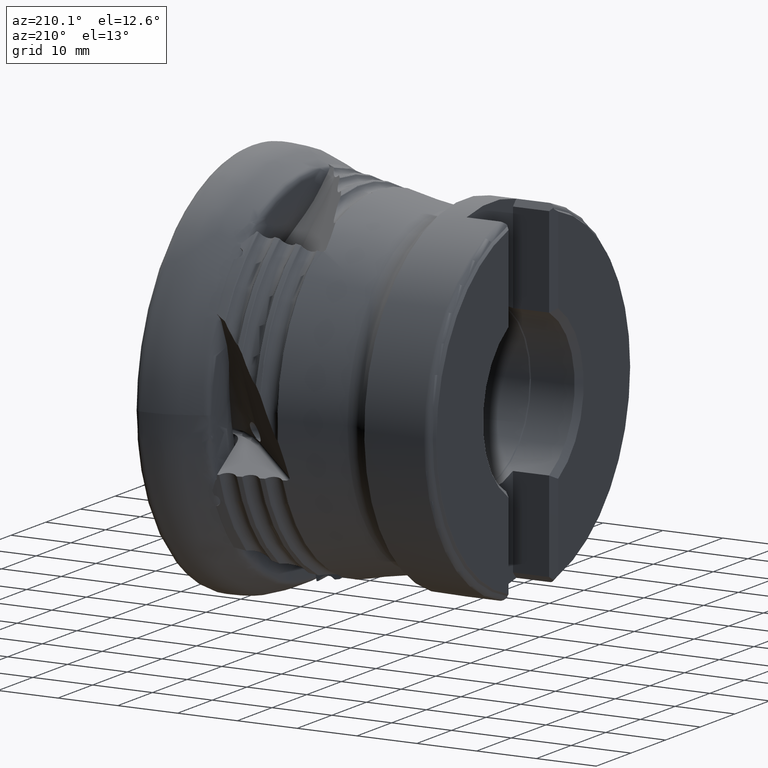
[diagram: clean part render]
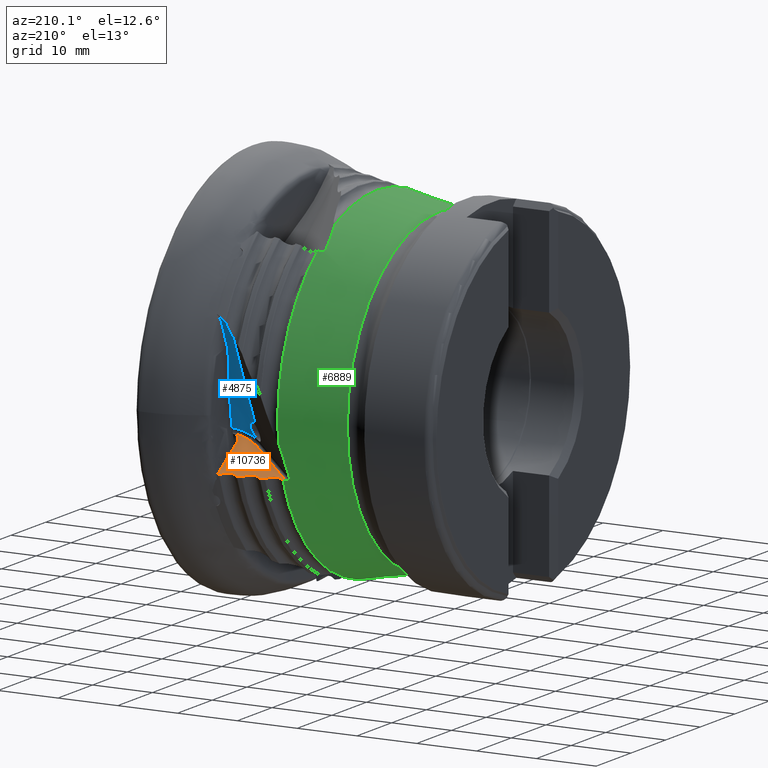
[diagram: same view with three faces highlighted in distinct colors, each labeled with its STEP entity id]
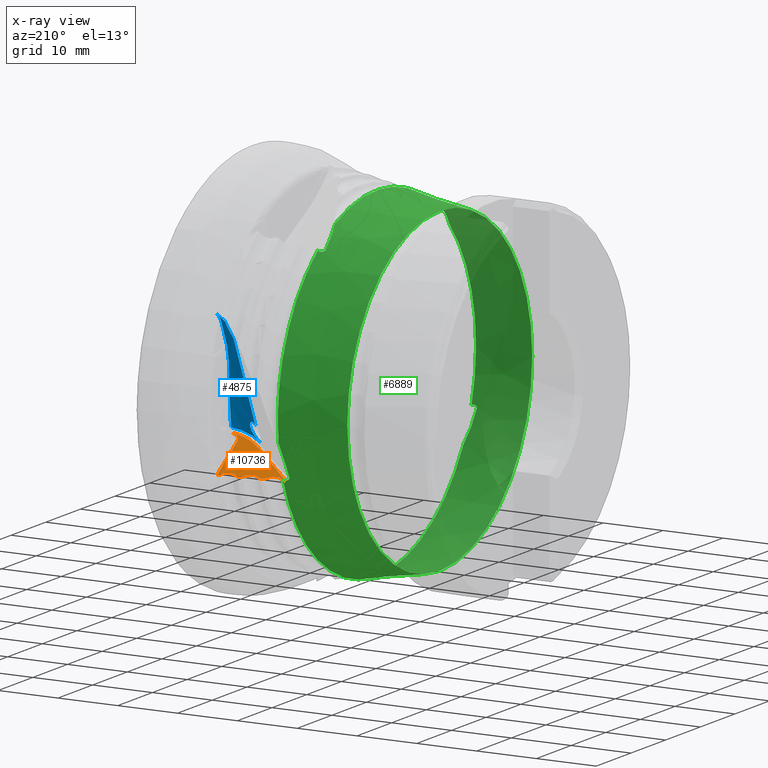
[diagram: x-ray of the same camera — body ghosted, the three highlighted faces saturated]
A machine part, auxiliary view with three faces highlighted in distinct colors.
The next image is the same camera in x-ray (body ghosted, the three faces saturated) — at least one of them is partly hidden behind the body in this view.
Their STEP definitions:

[orange] entity #10736 — the highlighted planar face has unit normal (0.0698, -0.3083, -0.9487).
#38 = CARTESIAN_POINT ( 'NONE',  ( -20.03457086515668500, 27.61462174756293200, -9.149127731909999300 ) ) ;
#48 = AXIS2_PLACEMENT_3D ( 'NONE', #537, #8233, #1646 ) ;
#51 = CARTESIAN_POINT ( 'NONE',  ( -9.417737406060714600, 18.50594777688688800, -5.408933212480900600 ) ) ;
#55 = DIRECTION ( 'NONE',  ( 0.9975640502598250900, 0.02155593585460106500, 0.06634234890810893100 ) ) ;
#87 = B_SPLINE_CURVE_WITH_KNOTS ( 'NONE', 3,
 ( #1475, #13545, #10270, #3667, #11374, #4781, #12480, #5881, #13594, #6985, #404, #8096, #1527, #9199, #2639, #10317 ),
 .UNSPECIFIED., .F., .F.,
 ( 4, 2, 2, 2, 2, 2, 2, 4 ),
 ( 2.823500845619924600E-007, 0.0003656658362658394400, 0.0007310493224471169700, 0.001096432808628394300, 0.001461816294809671800, 0.001827199780990949300, 0.002192583267172226700, 0.002923350239534792100 ),
 .UNSPECIFIED. ) ;
#122 = ORIENTED_EDGE ( 'NONE', *, *, #13605, .T. ) ;
#250 = CARTESIAN_POINT ( 'NONE',  ( -22.56416408146930100, 27.03174585126543800, -9.145729228896307500 ) ) ;
#404 = CARTESIAN_POINT ( 'NONE',  ( -14.09978585292977000, 28.06701217839652100, -8.859760844096701500 ) ) ;
#438 = CARTESIAN_POINT ( 'NONE',  ( -13.14946955177453300, 28.96366916173360900, -9.081229971419357800 ) ) ;
#462 = VERTEX_POINT ( 'NONE', #2806 ) ;
#537 = CARTESIAN_POINT ( 'NONE',  ( -9.064967516565205900, 20.38544803573558200, -5.993682318018667100 ) ) ;
#594 = CARTESIAN_POINT ( 'NONE',  ( -9.417737406060714600, 18.50594777688688800, -5.408933212480900600 ) ) ;
#607 = CARTESIAN_POINT ( 'NONE',  ( -10.20565752589745900, 18.79294504012771200, -5.560116419039556700 ) ) ;
#655 = ORIENTED_EDGE ( 'NONE', *, *, #5323, .T. ) ;
#666 = CARTESIAN_POINT ( 'NONE',  ( -17.32043550550296400, 27.49314491688856100, -8.910099625704015500 ) ) ;
#683 = EDGE_CURVE ( 'NONE', #2894, #3228, #11831, .T. ) ;
#758 = ORIENTED_EDGE ( 'NONE', *, *, #2145, .T. ) ;
#763 = ORIENTED_EDGE ( 'NONE', *, *, #5084, .F. ) ;
#797 = VERTEX_POINT ( 'NONE', #7254 ) ;
#827 = CARTESIAN_POINT ( 'NONE',  ( -16.64827197925246700, 28.24650636244229000, -9.105460504793903500 ) ) ;
#850 = CARTESIAN_POINT ( 'NONE',  ( -21.82997309991508300, 26.65105752593511600, -8.968054407379686000 ) ) ;
#876 = CARTESIAN_POINT ( 'NONE',  ( -15.72510312433645500, 28.42731684726003700, -9.096333032145105700 ) ) ;
#1046 = CARTESIAN_POINT ( 'NONE',  ( -12.21769571363306500, 25.77278962146173300, -7.975941315182755200 ) ) ;
#1075 = CARTESIAN_POINT ( 'NONE',  ( -14.59025029355367300, 37.65953987522164000, -12.01262362423591200 ) ) ;
#1182 = CARTESIAN_POINT ( 'NONE',  ( -19.96993367357831100, 27.62732102232577700, -9.148501500963789100 ) ) ;
#1248 = B_SPLINE_CURVE_WITH_KNOTS ( 'NONE', 3,
 ( #12019, #3218, #2114, #5418 ),
 .UNSPECIFIED., .F., .F.,
 ( 4, 4 ),
 ( 0.001930448597579820500, 0.002153799477540832000 ),
 .UNSPECIFIED. ) ;
#1341 = CARTESIAN_POINT ( 'NONE',  ( -19.16765294675882100, 27.75235806929228800, -9.130140487951530700 ) ) ;
#1444 = EDGE_CURVE ( 'NONE', #10861, #11822, #11992, .T. ) ;
#1475 = CARTESIAN_POINT ( 'NONE',  ( -15.67907865607192100, 28.38355262345619300, -9.078729206345803600 ) ) ;
#1510 = CARTESIAN_POINT ( 'NONE',  ( -22.61020193476376900, 27.07547456422840100, -9.163322500663674900 ) ) ;
#1527 = CARTESIAN_POINT ( 'NONE',  ( -13.77164698538466700, 28.23085397415442100, -8.888869728712478500 ) ) ;
#1646 = DIRECTION ( 'NONE',  ( 0.9975640502598252000, 0.02155593585460165900, 0.06634234890810911100 ) ) ;
#1724 = CARTESIAN_POINT ( 'NONE',  ( -10.80559053024414400, 19.36190733498045100, -5.789093789900799300 ) ) ;
#1728 = CARTESIAN_POINT ( 'NONE',  ( -19.12162136877060400, 27.70861223114297900, -9.112542113268231600 ) ) ;
#1745 = CARTESIAN_POINT ( 'NONE',  ( -8.667758799170282900, 20.94977193619876500, -6.147837338019591900 ) ) ;
#1768 = ORIENTED_EDGE ( 'NONE', *, *, #1444, .F. ) ;
#1777 = CARTESIAN_POINT ( 'NONE',  ( -16.92751231749468800, 27.77887169396945300, -8.974048048271800600 ) ) ;
#1897 = CARTESIAN_POINT ( 'NONE',  ( -16.59201924174492100, 28.29006133588059400, -9.115476368437944300 ) ) ;
#1945 = B_SPLINE_CURVE_WITH_KNOTS ( 'NONE', 3,
 ( #6075, #13744, #7177, #594 ),
 .UNSPECIFIED., .F., .F.,
 ( 4, 4 ),
 ( 0.0001401619030391583500, 0.0003388511537494682200 ),
 .UNSPECIFIED. ) ;
#1959 = CARTESIAN_POINT ( 'NONE',  ( -21.46432730028981300, 26.62281021357812000, -8.931992045107398000 ) ) ;
#1994 = CARTESIAN_POINT ( 'NONE',  ( -15.85813551317378000, 28.43381058252424900, -9.108224234399088500 ) ) ;
#2031 = DIRECTION ( 'NONE',  ( -0.1857083024379775100, 0.9304183051527861200, -0.3159655105264204100 ) ) ;
#2034 = CARTESIAN_POINT ( 'NONE',  ( -11.79219044487566100, 23.64096306447184800, -7.251983432264677500 ) ) ;
#2114 = CARTESIAN_POINT ( 'NONE',  ( -13.01178344396749000, 28.99057397677201900, -9.079848449429910300 ) ) ;
#2138 = CARTESIAN_POINT ( 'NONE',  ( -16.67460319377692100, 28.18856211470707900, -9.088569290533854400 ) ) ;
#2145 = EDGE_CURVE ( 'NONE', #3460, #13778, #10534, .T. ) ;
#2196 = CARTESIAN_POINT ( 'NONE',  ( -15.85813551317378000, 28.43381058252424900, -9.108224234399088500 ) ) ;
#2354 = EDGE_CURVE ( 'NONE', #9125, #12946, #13507, .T. ) ;
#2554 = VERTEX_POINT ( 'NONE', #8030 ) ;
#2639 = CARTESIAN_POINT ( 'NONE',  ( -13.33088366845043300, 28.64477893124156800, -8.990954800311811800 ) ) ;
#2689 = B_SPLINE_CURVE_WITH_KNOTS ( 'NONE', 3,
 ( #8573, #876, #7442, #1994 ),
 .UNSPECIFIED., .F., .F.,
 ( 4, 4 ),
 ( 2.825592783316494400E-007, 0.0001952333924664903300 ),
 .UNSPECIFIED. ) ;
#2703 = LINE ( 'NONE', #6530, #5267 ) ;
#2806 = CARTESIAN_POINT ( 'NONE',  ( -16.52739096087962200, 28.30272341036735600, -9.114838705553083300 ) ) ;
#2843 = CARTESIAN_POINT ( 'NONE',  ( -18.94009482787137300, 27.55650388951393400, -9.049772305359931900 ) ) ;
#2864 = DIRECTION ( 'NONE',  ( 0.0000000000000000000, -0.9510565162951524200, 0.3090169943749512300 ) ) ;
#2894 = VERTEX_POINT ( 'NONE', #11622 ) ;
#2905 = CARTESIAN_POINT ( 'NONE',  ( -16.67460319377692100, 28.18856211470707900, -9.088569290533854400 ) ) ;
#2956 = CARTESIAN_POINT ( 'NONE',  ( -23.13966455753293900, 27.00372019953664800, -9.178937046054741700 ) ) ;
#3034 = EDGE_CURVE ( 'NONE', #6921, #8092, #2689, .T. ) ;
#3082 = CARTESIAN_POINT ( 'NONE',  ( -21.10182520239953200, 26.67951487355025700, -8.923763393810064700 ) ) ;
#3181 = VECTOR ( 'NONE', #4273, 1000.000000000000200 ) ;
#3187 = CARTESIAN_POINT ( 'NONE',  ( -14.59025029355367300, 37.65953987522164000, -12.01262362423591200 ) ) ;
#3218 = CARTESIAN_POINT ( 'NONE',  ( -12.93871842505904200, 29.00485022529485600, -9.079114948932904400 ) ) ;
#3228 = VERTEX_POINT ( 'NONE', #3425 ) ;
#3292 = CIRCLE ( 'NONE', #12711, 9.434852806819119300 ) ;
#3293 = CARTESIAN_POINT ( 'NONE',  ( -16.30430793977323500, 28.34643018690792400, -9.112637629477745800 ) ) ;
#3398 = CARTESIAN_POINT ( 'NONE',  ( -15.67907865607192100, 28.38355262345619300, -9.078729206345803600 ) ) ;
#3425 = CARTESIAN_POINT ( 'NONE',  ( -10.92859206754690300, 19.66604021766430000, -5.896956291137737300 ) ) ;
#3460 = VERTEX_POINT ( 'NONE', #250 ) ;
#3512 = CARTESIAN_POINT ( 'NONE',  ( -23.13966455753293900, 27.00372019953664800, -9.178937046054741700 ) ) ;
#3649 = CARTESIAN_POINT ( 'NONE',  ( -22.67857507109783900, 27.09454023951385400, -9.174544476367531200 ) ) ;
#3667 = CARTESIAN_POINT ( 'NONE',  ( -15.29006035520263000, 28.11414327848930500, -8.962590077163522300 ) ) ;
#3929 = CARTESIAN_POINT ( 'NONE',  ( -14.39727556830228000, 20.26762286458157200, -6.347458688131321300 ) ) ;
#3934 = CARTESIAN_POINT ( 'NONE',  ( -18.61937603137207400, 27.39254487701288100, -8.972917814632037200 ) ) ;
#4028 = ORIENTED_EDGE ( 'NONE', *, *, #2354, .T. ) ;
#4163 = CARTESIAN_POINT ( 'NONE',  ( -20.76277450299790700, 26.81739866444587500, -8.943635714555883400 ) ) ;
#4273 = DIRECTION ( 'NONE',  ( 0.1857083024379773400, -0.9304183051527862300, 0.3159655105264204100 ) ) ;
#4298 = ORIENTED_EDGE ( 'NONE', *, *, #13222, .F. ) ;
#4375 = ORIENTED_EDGE ( 'NONE', *, *, #13292, .T. ) ;
#4394 = LINE ( 'NONE', #9704, #10240 ) ;
#4477 = CARTESIAN_POINT ( 'NONE',  ( -19.74685080056357100, 27.67115013417486600, -9.146340184928231300 ) ) ;
#4500 = DIRECTION ( 'NONE',  ( -0.06975647374411164700, 0.3082642445077940500, 0.9487397904213915600 ) ) ;
#4636 = CARTESIAN_POINT ( 'NONE',  ( -19.30067822587246700, 27.75877300443604800, -9.142005563749030700 ) ) ;
#4720 = EDGE_CURVE ( 'NONE', #10074, #13312, #2703, .T. ) ;
#4781 = CARTESIAN_POINT ( 'NONE',  ( -14.94535379991793200, 28.00216222571169700, -8.900860539730704300 ) ) ;
#4807 = CARTESIAN_POINT ( 'NONE',  ( -22.56416408146930100, 27.03174585126543800, -9.145729228896307500 ) ) ;
#4902 = CARTESIAN_POINT ( 'NONE',  ( -13.23206048107823000, 28.86220699877018700, -9.054335447464335800 ) ) ;
#5037 = CARTESIAN_POINT ( 'NONE',  ( -18.26609208390284100, 27.30845339059146000, -8.919619490425954900 ) ) ;
#5084 = EDGE_CURVE ( 'NONE', #2554, #5913, #14054, .T. ) ;
#5091 = ORIENTED_EDGE ( 'NONE', *, *, #7565, .F. ) ;
#5210 = B_SPLINE_CURVE_WITH_KNOTS ( 'NONE', 3,
 ( #10716, #12922, #6327, #14039, #7415, #850, #8538, #1959, #9650, #3082, #10760, #4163, #11870, #5282, #12966, #6374 ),
 .UNSPECIFIED., .F., .F.,
 ( 4, 2, 2, 2, 2, 2, 2, 4 ),
 ( 2.821933274704443900E-007, 0.0003657018845609555800, 0.0007311215757944407100, 0.001096541267027926000, 0.001461960958261411000, 0.001827380649494896000, 0.002192800340728381200, 0.002923639723195358200 ),
 .UNSPECIFIED. ) ;
#5256 = LINE ( 'NONE', #1075, #11799 ) ;
#5267 = VECTOR ( 'NONE', #13132, 999.9999999999998900 ) ;
#5282 = CARTESIAN_POINT ( 'NONE',  ( -20.36999133386996200, 27.10332366580199100, -9.007658839039312000 ) ) ;
#5306 = CARTESIAN_POINT ( 'NONE',  ( -12.01802429545649900, 24.32540508395924700, -7.490976649791637200 ) ) ;
#5323 = EDGE_CURVE ( 'NONE', #11543, #14175, #1248, .T. ) ;
#5418 = CARTESIAN_POINT ( 'NONE',  ( -13.08484824818093100, 28.97629661012632200, -9.080581570841236100 ) ) ;
#5470 = ORIENTED_EDGE ( 'NONE', *, *, #4720, .T. ) ;
#5527 = CARTESIAN_POINT ( 'NONE',  ( -8.382543078055224600, 27.29931115340615500, -8.189957091364338000 ) ) ;
#5766 = CARTESIAN_POINT ( 'NONE',  ( -9.307727034862150400, 18.34969890808466500, -5.350076320838680600 ) ) ;
#5864 = CARTESIAN_POINT ( 'NONE',  ( -22.74322093857116300, 27.08180896563923000, -9.175160948070722400 ) ) ;
#5881 = CARTESIAN_POINT ( 'NONE',  ( -14.57979812160586700, 27.97338916049102800, -8.864633976203373700 ) ) ;
#5911 = ORIENTED_EDGE ( 'NONE', *, *, #13992, .T. ) ;
#5913 = VERTEX_POINT ( 'NONE', #2138 ) ;
#5962 = EDGE_CURVE ( 'NONE', #8092, #462, #8745, .T. ) ;
#6001 = B_SPLINE_CURVE_WITH_KNOTS ( 'NONE', 3,
 ( #14010, #1897, #827, #8504 ),
 .UNSPECIFIED., .F., .F.,
 ( 4, 4 ),
 ( 2.009225907951441100E-007, 0.0001950149194864243600 ),
 .UNSPECIFIED. ) ;
#6075 = CARTESIAN_POINT ( 'NONE',  ( -9.307727034862150400, 18.34969890808466500, -5.350076320838680600 ) ) ;
#6142 = CARTESIAN_POINT ( 'NONE',  ( -17.90076739163462000, 27.30842559787690100, -8.892749815450985200 ) ) ;
#6249 = VERTEX_POINT ( 'NONE', #13998 ) ;
#6261 = B_SPLINE_CURVE_WITH_KNOTS ( 'NONE', 3,
 ( #11447, #438, #11504, #4902 ),
 .UNSPECIFIED., .F., .F.,
 ( 4, 4 ),
 ( 2.009043020309511600E-007, 0.0001949760907908047200 ),
 .UNSPECIFIED. ) ;
#6327 = CARTESIAN_POINT ( 'NONE',  ( -22.38257578364283500, 26.87968473737922500, -9.082970225509017200 ) ) ;
#6374 = CARTESIAN_POINT ( 'NONE',  ( -20.11714590647561000, 27.51307755711567900, -9.122205387439395400 ) ) ;
#6385 = AXIS2_PLACEMENT_3D ( 'NONE', #1745, #9433, #2864 ) ;
#6393 = CARTESIAN_POINT ( 'NONE',  ( -12.21769571363306500, 25.77278962146173300, -7.975941315182755200 ) ) ;
#6530 = CARTESIAN_POINT ( 'NONE',  ( -14.39727556830227200, 20.26762286458157200, -6.347458688131321300 ) ) ;
#6565 = CARTESIAN_POINT ( 'NONE',  ( -15.85813551317378000, 28.43381058252424900, -9.108224234399088500 ) ) ;
#6598 = CARTESIAN_POINT ( 'NONE',  ( -20.09081437153028900, 27.57103785088304400, -9.139101791812263900 ) ) ;
#6622 = DIRECTION ( 'NONE',  ( 0.06975647374411166100, -0.3082642445077940500, -0.9487397904213916700 ) ) ;
#6650 = ORIENTED_EDGE ( 'NONE', *, *, #12664, .T. ) ;
#6697 = CARTESIAN_POINT ( 'NONE',  ( -11.03755873855191900, 20.05081248898399700, -6.029988198859030000 ) ) ;
#6887 = AXIS2_PLACEMENT_3D ( 'NONE', #5527, #6622, #55 ) ;
#6902 = EDGE_CURVE ( 'NONE', #12284, #11963, #12625, .T. ) ;
#6921 = VERTEX_POINT ( 'NONE', #3398 ) ;
#6933 = ORIENTED_EDGE ( 'NONE', *, *, #11647, .T. ) ;
#6985 = CARTESIAN_POINT ( 'NONE',  ( -14.21730509646593200, 28.02955410197955300, -8.856230626817900700 ) ) ;
#7163 = ORIENTED_EDGE ( 'NONE', *, *, #8021, .F. ) ;
#7177 = CARTESIAN_POINT ( 'NONE',  ( -9.382862692966099900, 18.45295259128107200, -5.389149855625795700 ) ) ;
#7184 = CARTESIAN_POINT ( 'NONE',  ( -10.05910340205923600, 18.70793358586578500, -5.521719072388805200 ) ) ;
#7233 = VERTEX_POINT ( 'NONE', #51 ) ;
#7234 = CARTESIAN_POINT ( 'NONE',  ( -17.54210347592052000, 27.39301910551592900, -8.893865003950322600 ) ) ;
#7254 = CARTESIAN_POINT ( 'NONE',  ( -19.30067822587246700, 27.75877300443604800, -9.142005563749030700 ) ) ;
#7415 = CARTESIAN_POINT ( 'NONE',  ( -22.06174342644258200, 26.71587724557647500, -9.006156617244284800 ) ) ;
#7434 = CARTESIAN_POINT ( 'NONE',  ( -11.79219044487566100, 23.64096306447184800, -7.251983432264677500 ) ) ;
#7442 = CARTESIAN_POINT ( 'NONE',  ( -15.79345816673446600, 28.44647563323409800, -9.107583930981711300 ) ) ;
#7565 = EDGE_CURVE ( 'NONE', #9125, #10861, #5256, .T. ) ;
#7694 = ORIENTED_EDGE ( 'NONE', *, *, #10255, .T. ) ;
#7801 = EDGE_CURVE ( 'NONE', #14175, #6249, #6261, .T. ) ;
#7907 = CARTESIAN_POINT ( 'NONE',  ( -11.15464669845108900, 20.44680122989508700, -6.167261679497132200 ) ) ;
#8021 = EDGE_CURVE ( 'NONE', #3460, #11963, #5210, .T. ) ;
#8030 = CARTESIAN_POINT ( 'NONE',  ( -19.12162136877060400, 27.70861223114297900, -9.112542113268231600 ) ) ;
#8092 = VERTEX_POINT ( 'NONE', #6565 ) ;
#8096 = CARTESIAN_POINT ( 'NONE',  ( -13.87807255969320000, 28.16700415850716900, -8.875948649058953400 ) ) ;
#8233 = DIRECTION ( 'NONE',  ( -0.06975647374411164700, 0.3082642445077941100, 0.9487397904213916700 ) ) ;
#8301 = CARTESIAN_POINT ( 'NONE',  ( -10.59986855777451200, 19.09543898513832600, -5.687387184048810200 ) ) ;
#8302 = CARTESIAN_POINT ( 'NONE',  ( -19.03531406367724100, 27.62659059372087700, -9.079545888517309000 ) ) ;
#8349 = CARTESIAN_POINT ( 'NONE',  ( -17.21404095561778600, 27.55705031330011300, -8.923041045725776500 ) ) ;
#8400 = ORIENTED_EDGE ( 'NONE', *, *, #683, .F. ) ;
#8476 = ORIENTED_EDGE ( 'NONE', *, *, #9215, .T. ) ;
#8504 = CARTESIAN_POINT ( 'NONE',  ( -16.67460319377692100, 28.18856211470707900, -9.088569290533854400 ) ) ;
#8538 = CARTESIAN_POINT ( 'NONE',  ( -21.70835828409066100, 26.63201707719915800, -8.952926012432474300 ) ) ;
#8573 = CARTESIAN_POINT ( 'NONE',  ( -15.67907865607192100, 28.38355262345619300, -9.078729206345803600 ) ) ;
#8640 = B_SPLINE_CURVE_WITH_KNOTS ( 'NONE', 3,
 ( #13375, #8981, #10104, #3512 ),
 .UNSPECIFIED., .F., .F.,
 ( 4, 4 ),
 ( 2.038504864755850800E-007, 0.0004042825770224062600 ),
 .UNSPECIFIED. ) ;
#8697 = EDGE_CURVE ( 'NONE', #13778, #10074, #8640, .T. ) ;
#8745 = B_SPLINE_CURVE_WITH_KNOTS ( 'NONE', 3,
 ( #2196, #8761, #3293, #10989 ),
 .UNSPECIFIED., .F., .F.,
 ( 4, 4 ),
 ( 2.038080533610455200E-007, 0.0006822085384010942300 ),
 .UNSPECIFIED. ) ;
#8761 = CARTESIAN_POINT ( 'NONE',  ( -16.08122278123391900, 28.39012586589337400, -9.110432790432559700 ) ) ;
#8861 = CARTESIAN_POINT ( 'NONE',  ( -20.11714590647561000, 27.51307755711567900, -9.122205387439395400 ) ) ;
#8981 = CARTESIAN_POINT ( 'NONE',  ( -22.87536966189678000, 27.05578376638082700, -9.176421136136506000 ) ) ;
#9002 = LINE ( 'NONE', #3187, #3181 ) ;
#9014 = CARTESIAN_POINT ( 'NONE',  ( -19.12162136877060400, 27.70861223114297900, -9.112542113268231600 ) ) ;
#9125 = VERTEX_POINT ( 'NONE', #2034 ) ;
#9199 = CARTESIAN_POINT ( 'NONE',  ( -13.48502127113270400, 28.45256171684608400, -8.939832670479997700 ) ) ;
#9215 = EDGE_CURVE ( 'NONE', #13312, #13712, #3292, .T. ) ;
#9244 = B_SPLINE_CURVE_WITH_KNOTS ( 'NONE', 3,
 ( #11476, #13696, #13802, #7184, #607, #8301, #1724, #9410 ),
 .UNSPECIFIED., .F., .F.,
 ( 4, 2, 2, 4 ),
 ( 0.0003732814817626819900, 0.0008857449366015181800, 0.001398208391440354300, 0.002423135301118022700 ),
 .UNSPECIFIED. ) ;
#9410 = CARTESIAN_POINT ( 'NONE',  ( -10.92859206754690300, 19.66604021766430000, -5.896956291137737300 ) ) ;
#9433 = DIRECTION ( 'NONE',  ( -0.06975647374411164700, 0.3082642445077940500, 0.9487397904213915600 ) ) ;
#9462 = CARTESIAN_POINT ( 'NONE',  ( -16.77341313723457000, 27.97112178976138000, -9.025183686940963000 ) ) ;
#9503 = ORIENTED_EDGE ( 'NONE', *, *, #6902, .T. ) ;
#9650 = CARTESIAN_POINT ( 'NONE',  ( -21.34301836937894900, 26.63226372471369900, -8.926144389257114400 ) ) ;
#9704 = CARTESIAN_POINT ( 'NONE',  ( -12.32517710808669900, 26.50191718025788000, -8.220751832752736000 ) ) ;
#9709 = ORIENTED_EDGE ( 'NONE', *, *, #8697, .T. ) ;
#9865 = EDGE_LOOP ( 'NONE', ( #8476, #6933, #4375, #8400, #6650, #1768, #5091, #4028, #13324, #655, #12502, #4298, #13004, #10542, #5911, #763, #7694, #122, #9503, #7163, #758, #9709, #5470 ) ) ;
#9967 = CARTESIAN_POINT ( 'NONE',  ( -19.30067822587246700, 27.75877300443604800, -9.142005563749030700 ) ) ;
#10074 = VERTEX_POINT ( 'NONE', #2956 ) ;
#10104 = CARTESIAN_POINT ( 'NONE',  ( -23.00751753721504800, 27.02975418884248900, -9.177679839262825800 ) ) ;
#10240 = VECTOR ( 'NONE', #2031, 1000.000000000000100 ) ;
#10255 = EDGE_CURVE ( 'NONE', #2554, #797, #12962, .T. ) ;
#10260 = CARTESIAN_POINT ( 'NONE',  ( -12.86565319235579400, 29.01912536007716900, -9.078381070840320500 ) ) ;
#10270 = CARTESIAN_POINT ( 'NONE',  ( -15.49761358866360100, 28.23139006313759200, -9.015946301580452600 ) ) ;
#10317 = CARTESIAN_POINT ( 'NONE',  ( -13.23206048107823000, 28.86220699877018700, -9.054335447464335800 ) ) ;
#10527 = CARTESIAN_POINT ( 'NONE',  ( -18.73246706866955000, 27.43935052086731500, -8.996440954106891000 ) ) ;
#10534 = B_SPLINE_CURVE_WITH_KNOTS ( 'NONE', 3,
 ( #4807, #1510, #3649, #12516 ),
 .UNSPECIFIED., .F., .F.,
 ( 4, 4 ),
 ( 2.824025210725595700E-007, 0.0001951817672248708200 ),
 .UNSPECIFIED. ) ;
#10542 = ORIENTED_EDGE ( 'NONE', *, *, #5962, .T. ) ;
#10691 = B_SPLINE_CURVE_WITH_KNOTS ( 'NONE', 3,
 ( #9967, #12103, #4477, #12203 ),
 .UNSPECIFIED., .F., .F.,
 ( 4, 4 ),
 ( 2.038285607712231100E-007, 0.0006822776332805868400 ),
 .UNSPECIFIED. ) ;
#10716 = CARTESIAN_POINT ( 'NONE',  ( -22.56416408146930100, 27.03174585126543800, -9.145729228896307500 ) ) ;
#10736 = ADVANCED_FACE ( 'NONE', ( #11164 ), #12120, .F. ) ;
#10760 = CARTESIAN_POINT ( 'NONE',  ( -20.98439653201713300, 26.71712286167489800, -8.927348979782854200 ) ) ;
#10861 = VERTEX_POINT ( 'NONE', #7907 ) ;
#10989 = CARTESIAN_POINT ( 'NONE',  ( -16.52739096087962200, 28.30272341036735600, -9.114838705553083300 ) ) ;
#10999 = DIRECTION ( 'NONE',  ( 0.1857083024379773400, -0.9304183051527862300, 0.3159655105264204100 ) ) ;
#11100 = CARTESIAN_POINT ( 'NONE',  ( -8.382543078055224600, 27.29931115340615800, -8.189957091364338000 ) ) ;
#11164 = FACE_OUTER_BOUND ( 'NONE', #9865, .T. ) ;
#11232 = CARTESIAN_POINT ( 'NONE',  ( -19.23601657953220500, 27.77147000804541200, -9.141376796814139300 ) ) ;
#11374 = CARTESIAN_POINT ( 'NONE',  ( -15.17700302643249100, 28.06727337804308700, -8.939048537889377100 ) ) ;
#11447 = CARTESIAN_POINT ( 'NONE',  ( -13.08484824818093100, 28.97629661012632200, -9.080581570841236100 ) ) ;
#11476 = CARTESIAN_POINT ( 'NONE',  ( -9.417737406060714600, 18.50594777688688800, -5.408933212480900600 ) ) ;
#11504 = CARTESIAN_POINT ( 'NONE',  ( -13.20573032636916200, 28.92013788329590100, -9.071222397677768600 ) ) ;
#11543 = VERTEX_POINT ( 'NONE', #10260 ) ;
#11622 = CARTESIAN_POINT ( 'NONE',  ( -11.02521899102085900, 19.98898904418838300, -6.008993259067793200 ) ) ;
#11636 = CARTESIAN_POINT ( 'NONE',  ( -18.38766889222653200, 27.32757909757389900, -8.934772792939973800 ) ) ;
#11647 = EDGE_CURVE ( 'NONE', #13712, #7233, #1945, .T. ) ;
#11799 = VECTOR ( 'NONE', #10999, 1000.000000000000200 ) ;
#11822 = VERTEX_POINT ( 'NONE', #6697 ) ;
#11831 = CIRCLE ( 'NONE', #48, 1.999999999999998200 ) ;
#11870 = CARTESIAN_POINT ( 'NONE',  ( -20.65641321454431900, 26.88136782048284000, -8.956600296895864200 ) ) ;
#11963 = VERTEX_POINT ( 'NONE', #12371 ) ;
#11992 = CIRCLE ( 'NONE', #6385, 2.537315167658674000 ) ;
#12019 = CARTESIAN_POINT ( 'NONE',  ( -12.86565319235579400, 29.01912536007716900, -9.078381070840320500 ) ) ;
#12103 = CARTESIAN_POINT ( 'NONE',  ( -19.52376564110737800, 27.71496741231698400, -9.144174855776679300 ) ) ;
#12120 = PLANE ( 'NONE',  #6887 ) ;
#12203 = CARTESIAN_POINT ( 'NONE',  ( -19.96993367357831100, 27.62732102232577700, -9.148501500963789100 ) ) ;
#12221 = DIRECTION ( 'NONE',  ( 9.193166610522112000E-016, 0.9510565162951523100, -0.3090169943749511700 ) ) ;
#12232 = CARTESIAN_POINT ( 'NONE',  ( -19.96993367357831100, 27.62732102232577700, -9.148501500963789100 ) ) ;
#12284 = VERTEX_POINT ( 'NONE', #12232 ) ;
#12371 = CARTESIAN_POINT ( 'NONE',  ( -20.11714590647561000, 27.51307755711567900, -9.122205387439395400 ) ) ;
#12480 = CARTESIAN_POINT ( 'NONE',  ( -14.82381095955863300, 27.98295319686440800, -8.885682661809879000 ) ) ;
#12502 = ORIENTED_EDGE ( 'NONE', *, *, #7801, .T. ) ;
#12516 = CARTESIAN_POINT ( 'NONE',  ( -22.74322093857116300, 27.08180896563923000, -9.175160948070722400 ) ) ;
#12625 = B_SPLINE_CURVE_WITH_KNOTS ( 'NONE', 3,
 ( #1182, #38, #6598, #8861 ),
 .UNSPECIFIED., .F., .F.,
 ( 4, 4 ),
 ( 2.009420425089818000E-007, 0.0001950607139824255800 ),
 .UNSPECIFIED. ) ;
#12664 = EDGE_CURVE ( 'NONE', #2894, #11822, #4394, .T. ) ;
#12711 = AXIS2_PLACEMENT_3D ( 'NONE', #11100, #4500, #12221 ) ;
#12728 = CARTESIAN_POINT ( 'NONE',  ( -18.02207238753417300, 27.29906420429091100, -8.898627112784220500 ) ) ;
#12922 = CARTESIAN_POINT ( 'NONE',  ( -22.47782863922398300, 26.94974077278515900, -9.112736315676345500 ) ) ;
#12946 = VERTEX_POINT ( 'NONE', #1046 ) ;
#12962 = B_SPLINE_CURVE_WITH_KNOTS ( 'NONE', 3,
 ( #9014, #1341, #11232, #4636 ),
 .UNSPECIFIED., .F., .F.,
 ( 4, 4 ),
 ( 2.824774743240128900E-007, 0.0001952069944519631700 ),
 .UNSPECIFIED. ) ;
#12966 = CARTESIAN_POINT ( 'NONE',  ( -20.21593834727435300, 27.29561819127998800, -9.058812310196286100 ) ) ;
#12994 = CARTESIAN_POINT ( 'NONE',  ( -12.16172459889426200, 25.03543289510995300, -7.732244292973341300 ) ) ;
#13004 = ORIENTED_EDGE ( 'NONE', *, *, #3034, .T. ) ;
#13132 = DIRECTION ( 'NONE',  ( 0.7672847685016597200, -0.5912005163151629100, 0.2485076126279422700 ) ) ;
#13185 = CARTESIAN_POINT ( 'NONE',  ( -13.08484824818093100, 28.97629661012632200, -9.080581570841236100 ) ) ;
#13222 = EDGE_CURVE ( 'NONE', #6921, #6249, #87, .T. ) ;
#13292 = EDGE_CURVE ( 'NONE', #7233, #3228, #9244, .T. ) ;
#13312 = VERTEX_POINT ( 'NONE', #3929 ) ;
#13324 = ORIENTED_EDGE ( 'NONE', *, *, #14038, .F. ) ;
#13375 = CARTESIAN_POINT ( 'NONE',  ( -22.74322093857116300, 27.08180896563923000, -9.175160948070722400 ) ) ;
#13507 = B_SPLINE_CURVE_WITH_KNOTS ( 'NONE', 3,
 ( #7434, #5306, #12994, #6393 ),
 .UNSPECIFIED., .F., .F.,
 ( 4, 4 ),
 ( 0.006293270384616177600, 0.008584946362367704800 ),
 .UNSPECIFIED. ) ;
#13545 = CARTESIAN_POINT ( 'NONE',  ( -15.59279969436622300, 28.30151078936160000, -9.045728503257143100 ) ) ;
#13594 = CARTESIAN_POINT ( 'NONE',  ( -14.45849466213005200, 27.98266361321422100, -8.858728543037580400 ) ) ;
#13605 = EDGE_CURVE ( 'NONE', #797, #12284, #10691, .T. ) ;
#13696 = CARTESIAN_POINT ( 'NONE',  ( -9.585567479544037500, 18.53126363982958600, -5.429498608494222700 ) ) ;
#13712 = VERTEX_POINT ( 'NONE', #5766 ) ;
#13744 = CARTESIAN_POINT ( 'NONE',  ( -9.346367130488744100, 18.40078094227169100, -5.369514908403812300 ) ) ;
#13778 = VERTEX_POINT ( 'NONE', #5864 ) ;
#13802 = CARTESIAN_POINT ( 'NONE',  ( -9.751131335386125100, 18.57792853878975200, -5.456834102217422700 ) ) ;
#13854 = CARTESIAN_POINT ( 'NONE',  ( -17.65957859625484600, 27.35548952609561700, -8.890308309761277200 ) ) ;
#13992 = EDGE_CURVE ( 'NONE', #462, #5913, #6001, .T. ) ;
#13998 = CARTESIAN_POINT ( 'NONE',  ( -13.23206048107823000, 28.86220699877018700, -9.054335447464335800 ) ) ;
#14010 = CARTESIAN_POINT ( 'NONE',  ( -16.52739096087962200, 28.30272341036735600, -9.114838705553083300 ) ) ;
#14038 = EDGE_CURVE ( 'NONE', #11543, #12946, #9002, .T. ) ;
#14039 = CARTESIAN_POINT ( 'NONE',  ( -22.17487027203978300, 26.76261983827484100, -9.029661902976261700 ) ) ;
#14054 = B_SPLINE_CURVE_WITH_KNOTS ( 'NONE', 3,
 ( #1728, #8302, #2843, #10527, #3934, #11636, #5037, #12728, #6142, #13854, #7234, #666, #8349, #1777, #9462, #2905 ),
 .UNSPECIFIED., .F., .F.,
 ( 4, 2, 2, 2, 2, 2, 2, 4 ),
 ( 2.822682888674062400E-007, 0.0003656799046820367400, 0.0007310775410752060200, 0.001096475177468375200, 0.001461872813861544700, 0.001827270450254714100, 0.002192668086647883400, 0.002923463359434207500 ),
 .UNSPECIFIED. ) ;
#14175 = VERTEX_POINT ( 'NONE', #13185 ) ;

[blue] entity #4875 — the highlighted conical surface has half-angle 7 deg.
#231 = CARTESIAN_POINT ( 'NONE',  ( -11.57178553194940900, 27.08717687632229600, 14.32841041982484100 ) ) ;
#237 = CARTESIAN_POINT ( 'NONE',  ( -8.796843899596023400, 18.02583339569354600, -4.616041296436322700 ) ) ;
#249 = CARTESIAN_POINT ( 'NONE',  ( -14.75277920607879900, 20.07067229888691500, -5.718362264756657400 ) ) ;
#526 = VERTEX_POINT ( 'NONE', #249 ) ;
#835 = CARTESIAN_POINT ( 'NONE',  ( -12.28655000005688100, 26.64790275893547600, 12.82079575457705700 ) ) ;
#874 = CARTESIAN_POINT ( 'NONE',  ( -11.67748845388869800, 23.53049475538883700, 6.334376238576415300 ) ) ;
#918 = CARTESIAN_POINT ( 'NONE',  ( -8.796843899596023400, 18.02583339569354600, -4.616041296436322700 ) ) ;
#948 = CARTESIAN_POINT ( 'NONE',  ( -13.40896347835403200, 19.38008334329628800, -4.935742589665403000 ) ) ;
#950 = CARTESIAN_POINT ( 'NONE',  ( -13.08484824817964000, 27.26299814431623100, 13.37204767736578500 ) ) ;
#1002 = CARTESIAN_POINT ( 'NONE',  ( -13.64378124615349600, 20.46950784120570400, -2.813852701215269600 ) ) ;
#1237 = B_SPLINE_CURVE_WITH_KNOTS ( 'NONE', 3,
 ( #950, #6571, #6803, #231 ),
 .UNSPECIFIED., .F., .F.,
 ( 4, 4 ),
 ( 2.549690926086762900E-007, 0.001796922107340452600 ),
 .UNSPECIFIED. ) ;
#1285 = VERTEX_POINT ( 'NONE', #237 ) ;
#1299 = FACE_OUTER_BOUND ( 'NONE', #10118, .T. ) ;
#1689 = ORIENTED_EDGE ( 'NONE', *, *, #12928, .T. ) ;
#1849 = CARTESIAN_POINT ( 'NONE',  ( -13.08484824817964000, 27.26299814431623100, 13.37204767736578500 ) ) ;
#1942 = CARTESIAN_POINT ( 'NONE',  ( -12.27774708249513600, 26.45955553558097500, 12.40570802515206200 ) ) ;
#1992 = CARTESIAN_POINT ( 'NONE',  ( -11.31598259771796900, 22.90529363858594500, 5.190678129101724100 ) ) ;
#2027 = CARTESIAN_POINT ( 'NONE',  ( -14.75212098190160500, 20.10156151571106200, -5.646909018870937700 ) ) ;
#2071 = CARTESIAN_POINT ( 'NONE',  ( -13.18367580050799700, 19.37083998623762000, -4.638809016927225100 ) ) ;
#2120 = CARTESIAN_POINT ( 'NONE',  ( -13.93780281565290500, 20.69892372998838300, -2.765604242482491600 ) ) ;
#2492 = B_SPLINE_CURVE_WITH_KNOTS ( 'NONE', 3,
 ( #13927, #10596, #8420, #1849 ),
 .UNSPECIFIED., .F., .F.,
 ( 4, 4 ),
 ( 7.182869197975823700E-007, 0.0002770162712568609900 ),
 .UNSPECIFIED. ) ;
#2868 = CARTESIAN_POINT ( 'NONE',  ( -13.56429930587547800, 27.08608336843855800, 12.33218748147097400 ) ) ;
#3066 = CARTESIAN_POINT ( 'NONE',  ( -12.26713001532706200, 26.08513433925929100, 11.57440133990828500 ) ) ;
#3107 = CARTESIAN_POINT ( 'NONE',  ( -10.72286730377660600, 21.88742845002444800, 3.270230031851482500 ) ) ;
#3174 = CARTESIAN_POINT ( 'NONE',  ( -13.01440558577719000, 19.41792468682279700, -4.306141284532531100 ) ) ;
#3227 = CARTESIAN_POINT ( 'NONE',  ( -14.24171490153387500, 20.91951823614406100, -2.794520695775579300 ) ) ;
#3494 = DIRECTION ( 'NONE',  ( 0.9975640502598253100, 0.02155593585460095100, 0.06634234890810890300 ) ) ;
#3950 = CARTESIAN_POINT ( 'NONE',  ( -13.91291739192327600, 27.06976198428515400, 11.75577536135848800 ) ) ;
#4106 = CARTESIAN_POINT ( 'NONE',  ( -11.74425564480652400, 27.07286944866972800, 14.19001246577137100 ) ) ;
#4146 = CARTESIAN_POINT ( 'NONE',  ( -12.24724258460362600, 25.61499523705800400, 10.53632083879700300 ) ) ;
#4186 = CARTESIAN_POINT ( 'NONE',  ( -10.10707391675455300, 20.70593546153259700, 0.9247587329942783500 ) ) ;
#4206 = EDGE_CURVE ( 'NONE', #7288, #526, #8158, .T. ) ;
#4264 = CARTESIAN_POINT ( 'NONE',  ( -12.92458045952820300, 19.52170698749990800, -3.955562035142594600 ) ) ;
#4306 = CARTESIAN_POINT ( 'NONE',  ( -14.53804905253785400, 21.12011566672217800, -2.899623715808690600 ) ) ;
#4626 = VERTEX_POINT ( 'NONE', #12628 ) ;
#4875 = ADVANCED_FACE ( 'NONE', ( #1299 ), #6789, .F. ) ;
#5001 = ORIENTED_EDGE ( 'NONE', *, *, #8979, .F. ) ;
#5056 = CARTESIAN_POINT ( 'NONE',  ( -14.31120651691001700, 27.14357341960654700, 11.22308899712269600 ) ) ;
#5206 = CARTESIAN_POINT ( 'NONE',  ( -11.96727740492755600, 27.03014201466347900, 13.93779359229754000 ) ) ;
#5255 = CARTESIAN_POINT ( 'NONE',  ( -12.23267331953748300, 25.33224833361229500, 9.914330374240433800 ) ) ;
#5283 = DIRECTION ( 'NONE',  ( 0.06975647374411164700, -0.3082642445077940500, -0.9487397904213915600 ) ) ;
#5310 = CARTESIAN_POINT ( 'NONE',  ( -9.603097971845048900, 19.54674920856125200, -1.458623814311482200 ) ) ;
#5334 = CARTESIAN_POINT ( 'NONE',  ( -14.36711008283467500, 19.79269846007403200, -5.586690638277999300 ) ) ;
#5385 = CARTESIAN_POINT ( 'NONE',  ( -12.93078729873057700, 19.67602290640650200, -3.613790620617320500 ) ) ;
#5429 = CARTESIAN_POINT ( 'NONE',  ( -14.72789183482623300, 21.23858960340561800, -3.016724252725627100 ) ) ;
#5437 = VECTOR ( 'NONE', #12254, 1000.000000000000000 ) ;
#6051 = AXIS2_PLACEMENT_3D ( 'NONE', #12301, #13398, #3494 ) ;
#6058 = CARTESIAN_POINT ( 'NONE',  ( -13.37489337765340200, 27.14426037213733200, 12.73123217610036300 ) ) ;
#6158 = CARTESIAN_POINT ( 'NONE',  ( -14.59974489484923800, 27.25228334395371000, 10.89421236865878100 ) ) ;
#6240 = B_SPLINE_CURVE_WITH_KNOTS ( 'NONE', 3,
 ( #2027, #14102, #11919, #5334, #13035, #6422, #14148, #7529, #948, #8639, #2071, #9746, #3174, #10864, #4264, #11970, #5385, #13083, #6483, #14191, #7574, #1002, #8691, #2120, #9793, #3227, #10905, #4306, #12029, #5429 ),
 .UNSPECIFIED., .F., .F.,
 ( 4, 2, 2, 2, 2, 2, 2, 2, 2, 2, 2, 2, 2, 2, 4 ),
 ( 1.146964341781125700E-006, 0.0003739145107444327300, 0.0007466820571470844100, 0.001492217149952378300, 0.001864984696355024700, 0.002237752242757670700, 0.002610519789160316900, 0.002983287335562963500, 0.003356054881965609300, 0.003728822428368256400, 0.004474357521173543500, 0.004847125067576192800, 0.005219892613978841100, 0.005592660160381491200, 0.005965427706784139600 ),
 .UNSPECIFIED. ) ;
#6311 = CARTESIAN_POINT ( 'NONE',  ( -12.21751909038749600, 26.89968111604497400, 13.44599490693378900 ) ) ;
#6354 = CARTESIAN_POINT ( 'NONE',  ( -12.15657709069357900, 24.75507154820887500, 8.686176740912255700 ) ) ;
#6399 = CARTESIAN_POINT ( 'NONE',  ( -9.246680496492766500, 18.78137967603021600, -3.046226950808032200 ) ) ;
#6422 = CARTESIAN_POINT ( 'NONE',  ( -13.96500764569270100, 19.55230740002995700, -5.410287261816144200 ) ) ;
#6483 = CARTESIAN_POINT ( 'NONE',  ( -13.03394696009481500, 19.86921832769400400, -3.308600015563878800 ) ) ;
#6571 = CARTESIAN_POINT ( 'NONE',  ( -12.61506962307989500, 27.17537561591872100, 13.74641183628157900 ) ) ;
#6789 = CONICAL_SURFACE ( 'NONE', #6051, 9.999999999999996400, 0.1221730476396031000 ) ;
#6803 = CARTESIAN_POINT ( 'NONE',  ( -12.11196960186124000, 27.11341585487454300, 14.06685692357318900 ) ) ;
#7280 = EDGE_CURVE ( 'NONE', #9477, #10980, #10945, .T. ) ;
#7288 = VERTEX_POINT ( 'NONE', #10077 ) ;
#7400 = CARTESIAN_POINT ( 'NONE',  ( -12.28505727386379900, 26.74018174288295000, 13.02928347968824200 ) ) ;
#7430 = CARTESIAN_POINT ( 'NONE',  ( -13.08484824817964000, 27.26299814431623100, 13.37204767736578500 ) ) ;
#7440 = CARTESIAN_POINT ( 'NONE',  ( -11.77880300426337000, 23.73782727575720800, 6.720182777915858300 ) ) ;
#7504 = CARTESIAN_POINT ( 'NONE',  ( -8.930536610024406100, 18.21242179281247800, -4.227599074797113100 ) ) ;
#7529 = CARTESIAN_POINT ( 'NONE',  ( -13.49532722878023200, 19.39560856203548400, -5.027412949059624700 ) ) ;
#7574 = CARTESIAN_POINT ( 'NONE',  ( -13.37015916179124600, 20.23860333427067800, -2.925424950478322300 ) ) ;
#7575 = B_SPLINE_CURVE_WITH_KNOTS ( 'NONE', 3,
 ( #9437, #11553, #6058, #2868, #10549, #3950, #11663, #5056, #12750, #6158 ),
 .UNSPECIFIED., .F., .F.,
 ( 4, 2, 2, 2, 4 ),
 ( 7.165942423480875800E-007, 0.0006687483032934811900, 0.001336780012344614300, 0.002004811721395747400, 0.002672843430446880700 ),
 .UNSPECIFIED. ) ;
#7678 = ORIENTED_EDGE ( 'NONE', *, *, #7280, .F. ) ;
#8102 = AXIS2_PLACEMENT_3D ( 'NONE', #11871, #5283, #12967 ) ;
#8158 = LINE ( 'NONE', #9472, #10762 ) ;
#8420 = CARTESIAN_POINT ( 'NONE',  ( -13.15751587494338900, 27.27655202022631200, 13.31413922108434500 ) ) ;
#8469 = CARTESIAN_POINT ( 'NONE',  ( -11.57178553194940900, 27.08717687632229600, 14.32841041982484100 ) ) ;
#8512 = CARTESIAN_POINT ( 'NONE',  ( -12.28231679068224700, 26.60016135925706500, 12.71734986629397000 ) ) ;
#8571 = CARTESIAN_POINT ( 'NONE',  ( -11.44396830641840900, 23.11371552707165500, 5.570328673304363300 ) ) ;
#8639 = CARTESIAN_POINT ( 'NONE',  ( -13.25323381467001500, 19.36785270929128400, -4.741300838566333600 ) ) ;
#8691 = CARTESIAN_POINT ( 'NONE',  ( -13.74112775529975900, 20.54741925941650000, -2.789042416836075200 ) ) ;
#8699 = ORIENTED_EDGE ( 'NONE', *, *, #9606, .T. ) ;
#8979 = EDGE_CURVE ( 'NONE', #9115, #9477, #7575, .T. ) ;
#9024 = EDGE_CURVE ( 'NONE', #9115, #9069, #2492, .T. ) ;
#9069 = VERTEX_POINT ( 'NONE', #7430 ) ;
#9115 = VERTEX_POINT ( 'NONE', #11884 ) ;
#9437 = CARTESIAN_POINT ( 'NONE',  ( -13.23206048107830500, 27.24398055803848000, 13.14433363043868400 ) ) ;
#9472 = CARTESIAN_POINT ( 'NONE',  ( -14.75755773212577000, 19.84642510123332900, -6.237093129457759800 ) ) ;
#9477 = VERTEX_POINT ( 'NONE', #13742 ) ;
#9527 = B_SPLINE_CURVE_WITH_KNOTS ( 'NONE', 3,
 ( #8469, #10703, #4106, #11798, #5206, #12907, #6311, #14018, #7400, #835, #8512, #1942, #9633, #3066, #10742, #4146, #11854, #5255, #12951, #6354, #14077, #7440, #874, #8571, #1992, #9676, #3107, #10799, #4186, #11895, #5310, #13000, #6399, #14120, #7504, #918 ),
 .UNSPECIFIED., .F., .F.,
 ( 4, 2, 2, 2, 2, 2, 2, 2, 2, 2, 2, 2, 2, 2, 2, 2, 2, 4 ),
 ( 0.001280428423109374500, 0.001612402390956533000, 0.001944376358803691400, 0.002608324294498008000, 0.002940298262345166500, 0.003272272230192325000, 0.003936220165886645400, 0.005264116037275288000, 0.005928063972969608400, 0.006592011908663930600, 0.009247803651441212400, 0.01057569952282985700, 0.01190359539421849800, 0.01455938713699578100, 0.01721517887977306100, 0.01987097062255034600, 0.02119886649393898400, 0.02252676236532762100 ),
 .UNSPECIFIED. ) ;
#9606 = EDGE_CURVE ( 'NONE', #4626, #1285, #9527, .T. ) ;
#9633 = CARTESIAN_POINT ( 'NONE',  ( -12.27558429329200800, 26.36610674147008000, 12.19780331746279800 ) ) ;
#9676 = CARTESIAN_POINT ( 'NONE',  ( -10.95075756412856900, 22.28887026745342600, 4.043276289027138800 ) ) ;
#9746 = CARTESIAN_POINT ( 'NONE',  ( -13.06405909728868600, 19.39568486967154100, -4.421375206128978200 ) ) ;
#9793 = CARTESIAN_POINT ( 'NONE',  ( -14.03833434913312700, 20.77351794488543400, -2.766505467390258500 ) ) ;
#9815 = ORIENTED_EDGE ( 'NONE', *, *, #4206, .F. ) ;
#10077 = CARTESIAN_POINT ( 'NONE',  ( -14.75212098190160500, 20.10156151571106200, -5.646909018870937700 ) ) ;
#10118 = EDGE_LOOP ( 'NONE', ( #11209, #8699, #12375, #9815, #1689, #7678, #5001, #13693 ) ) ;
#10232 = EDGE_CURVE ( 'NONE', #9069, #4626, #1237, .T. ) ;
#10549 = CARTESIAN_POINT ( 'NONE',  ( -13.67422769958302600, 27.07067420287830100, 12.13519193243150000 ) ) ;
#10584 = DIRECTION ( 'NONE',  ( -0.008455365442190198800, -0.3967943225399990200, -0.9178686030120336600 ) ) ;
#10596 = CARTESIAN_POINT ( 'NONE',  ( -13.20635054760046300, 27.26758448000616400, 13.23097641510429600 ) ) ;
#10703 = CARTESIAN_POINT ( 'NONE',  ( -11.65914544999847800, 27.07998350902722300, 14.26071296660826700 ) ) ;
#10742 = CARTESIAN_POINT ( 'NONE',  ( -12.25933459992801400, 25.89712916740387200, 11.15914455371025600 ) ) ;
#10762 = VECTOR ( 'NONE', #10584, 1000.000000000000000 ) ;
#10799 = CARTESIAN_POINT ( 'NONE',  ( -10.30342691343436100, 21.09615916230651700, 1.710496463783392600 ) ) ;
#10864 = CARTESIAN_POINT ( 'NONE',  ( -12.94507790504861500, 19.48042390821256800, -4.074969175132737000 ) ) ;
#10905 = CARTESIAN_POINT ( 'NONE',  ( -14.34164552529473200, 20.98884322780716600, -2.821169911780611700 ) ) ;
#10945 = LINE ( 'NONE', #11092, #5437 ) ;
#10980 = VERTEX_POINT ( 'NONE', #12542 ) ;
#11092 = CARTESIAN_POINT ( 'NONE',  ( -14.75755773212577000, 19.84642510123332900, -6.237093129457759800 ) ) ;
#11209 = ORIENTED_EDGE ( 'NONE', *, *, #10232, .T. ) ;
#11247 = EDGE_CURVE ( 'NONE', #1285, #526, #12364, .T. ) ;
#11553 = CARTESIAN_POINT ( 'NONE',  ( -13.29422946635425400, 27.18690410241385500, 12.93482340324245200 ) ) ;
#11663 = CARTESIAN_POINT ( 'NONE',  ( -14.04105676684849200, 27.08396059160669000, 11.57384690772510200 ) ) ;
#11798 = CARTESIAN_POINT ( 'NONE',  ( -11.89840203959635900, 27.04822501848245900, 14.02906497732351100 ) ) ;
#11854 = CARTESIAN_POINT ( 'NONE',  ( -12.24446929179255900, 25.52126593980731800, 10.32828784495527700 ) ) ;
#11871 = CARTESIAN_POINT ( 'NONE',  ( -8.421671902754006600, 27.47222725619677800, -7.657776048493145600 ) ) ;
#11884 = CARTESIAN_POINT ( 'NONE',  ( -13.23206048107830500, 27.24398055803848000, 13.14433363043868400 ) ) ;
#11895 = CARTESIAN_POINT ( 'NONE',  ( -9.756827852608800800, 19.93149886539386300, -0.6599126179216231500 ) ) ;
#11919 = CARTESIAN_POINT ( 'NONE',  ( -14.56352442646270800, 19.93765699533243200, -5.635170070594193200 ) ) ;
#11970 = CARTESIAN_POINT ( 'NONE',  ( -12.91758566312946700, 19.61899410625846900, -3.726338920033481500 ) ) ;
#12029 = CARTESIAN_POINT ( 'NONE',  ( -14.63527621230635300, 21.18250382235881400, -2.952067115688035100 ) ) ;
#12254 = DIRECTION ( 'NONE',  ( -0.008455365442190198800, -0.3967943225399990200, -0.9178686030120336600 ) ) ;
#12301 = CARTESIAN_POINT ( 'NONE',  ( -8.382543078055224600, 27.29931115340615500, -8.189957091364338000 ) ) ;
#12364 = CIRCLE ( 'NONE', #8102, 9.931125882639779700 ) ;
#12375 = ORIENTED_EDGE ( 'NONE', *, *, #11247, .T. ) ;
#12542 = CARTESIAN_POINT ( 'NONE',  ( -14.72789183482623300, 21.23858960340561800, -3.016724252725627100 ) ) ;
#12628 = CARTESIAN_POINT ( 'NONE',  ( -11.57178553194940900, 27.08717687632229600, 14.32841041982484100 ) ) ;
#12750 = CARTESIAN_POINT ( 'NONE',  ( -14.45402735430755400, 27.18937661621157900, 11.05343058470463500 ) ) ;
#12907 = CARTESIAN_POINT ( 'NONE',  ( -12.13887404106856500, 26.96242531213725300, 13.65445050112867300 ) ) ;
#12928 = EDGE_CURVE ( 'NONE', #7288, #10980, #6240, .T. ) ;
#12951 = CARTESIAN_POINT ( 'NONE',  ( -12.22317676109567100, 25.23683815225707500, 9.708567649780603000 ) ) ;
#12967 = DIRECTION ( 'NONE',  ( 0.0000000000000000000, 0.9510565162951523100, -0.3090169943749512800 ) ) ;
#13000 = CARTESIAN_POINT ( 'NONE',  ( -9.339396343295433700, 18.97232124815210200, -2.650003589140728100 ) ) ;
#13035 = CARTESIAN_POINT ( 'NONE',  ( -14.26531387770809700, 19.72595631758792200, -5.550038283206089500 ) ) ;
#13083 = CARTESIAN_POINT ( 'NONE',  ( -12.98928807982543700, 19.80146700529413900, -3.404553709374290400 ) ) ;
#13398 = DIRECTION ( 'NONE',  ( 0.06975647374411164700, -0.3082642445077940500, -0.9487397904213915600 ) ) ;
#13693 = ORIENTED_EDGE ( 'NONE', *, *, #9024, .T. ) ;
#13742 = CARTESIAN_POINT ( 'NONE',  ( -14.59974489484923800, 27.25228334395371000, 10.89421236865878100 ) ) ;
#13927 = CARTESIAN_POINT ( 'NONE',  ( -13.23206048107830500, 27.24398055803848000, 13.14433363043868400 ) ) ;
#14018 = CARTESIAN_POINT ( 'NONE',  ( -12.27588505473744500, 26.78321812344706400, 13.13404570013049300 ) ) ;
#14077 = CARTESIAN_POINT ( 'NONE',  ( -12.04057740398499400, 24.35363555759717300, 7.889617658725249800 ) ) ;
#14102 = CARTESIAN_POINT ( 'NONE',  ( -14.65913751737593200, 20.01631860329491600, -5.647648712509445400 ) ) ;
#14120 = CARTESIAN_POINT ( 'NONE',  ( -9.041639741387838200, 18.40149277254840900, -3.834907679773440000 ) ) ;
#14148 = CARTESIAN_POINT ( 'NONE',  ( -13.76475627011470400, 19.46792616026638000, -5.274931940773872600 ) ) ;
#14191 = CARTESIAN_POINT ( 'NONE',  ( -13.20715811727145100, 20.08452603818631500, -3.050607677869897400 ) ) ;

[green] entity #6889 — the highlighted conical surface has half-angle 10.396 deg.
#176 = CARTESIAN_POINT ( 'NONE',  ( -22.74322093857116300, 0.0000000000000000000, 0.0000000000000000000 ) ) ;
#198 = EDGE_CURVE ( 'NONE', #786, #9670, #10028, .T. ) ;
#206 = DIRECTION ( 'NONE',  ( 0.0000000000000000000, 0.0000000000000000000, -1.000000000000000000 ) ) ;
#239 = ORIENTED_EDGE ( 'NONE', *, *, #10001, .T. ) ;
#302 = B_SPLINE_CURVE_WITH_KNOTS ( 'NONE', 3,
 ( #8279, #3848, #580, #3910 ),
 .UNSPECIFIED., .F., .F.,
 ( 4, 4 ),
 ( 2.038504839114071800E-007, 0.0004042825770196123200 ),
 .UNSPECIFIED. ) ;
#504 = CARTESIAN_POINT ( 'NONE',  ( -23.00751753721473800, -16.47302563277053600, 23.31258984418821700 ) ) ;
#546 = CARTESIAN_POINT ( 'NONE',  ( -22.74322093857116300, -0.3573573989208147000, -28.59161154891091200 ) ) ;
#580 = CARTESIAN_POINT ( 'NONE',  ( -23.00751753721489800, -0.3758388174714814600, -28.54288289441945300 ) ) ;
#617 = B_SPLINE_CURVE_WITH_KNOTS ( 'NONE', 3,
 ( #7535, #6431, #8645, #2078, #9753, #3182, #10870, #4269, #11976, #5389 ),
 .UNSPECIFIED., .F., .F.,
 ( 4, 2, 2, 2, 4 ),
 ( 3.469446951953614200E-018, 0.0002412013006598814000, 0.0004824026013197593300, 0.0007236039019796372100, 0.0009648052026395152000 ),
 .UNSPECIFIED. ) ;
#625 = CARTESIAN_POINT ( 'NONE',  ( -23.72037274726727700, 16.84150837944250500, 22.88572576681358900 ) ) ;
#786 = VERTEX_POINT ( 'NONE', #8381 ) ;
#832 = AXIS2_PLACEMENT_3D ( 'NONE', #8365, #1788, #9473 ) ;
#837 = DIRECTION ( 'NONE',  ( 1.000000000000000000, -0.0000000000000000000, -0.0000000000000000000 ) ) ;
#855 = CARTESIAN_POINT ( 'NONE',  ( -23.66118324728622500, -27.10489050021486400, -8.563406146998787000 ) ) ;
#864 = CARTESIAN_POINT ( 'NONE',  ( -22.74322093856865100, -24.96522579638631700, -13.94078391661865100 ) ) ;
#998 = CARTESIAN_POINT ( 'NONE',  ( -23.21923145743208700, 26.98804490231037100, -9.179694021479980000 ) ) ;
#1109 = ORIENTED_EDGE ( 'NONE', *, *, #4619, .F. ) ;
#1208 = CARTESIAN_POINT ( 'NONE',  ( -23.80883104433771500, -26.96783837175997400, -8.899526488721372500 ) ) ;
#1265 = DIRECTION ( 'NONE',  ( 0.0000000000000000000, 8.881784197001252300E-016, -1.000000000000000000 ) ) ;
#1505 = DIRECTION ( 'NONE',  ( -1.000000000000000000, 0.0000000000000000000, 0.0000000000000000000 ) ) ;
#1551 = CARTESIAN_POINT ( 'NONE',  ( -22.74322093857117700, 12.00310474610767200, 25.95252264671679400 ) ) ;
#1738 = CARTESIAN_POINT ( 'NONE',  ( -23.52837381282932600, 16.97912526037547900, 22.82766155553320100 ) ) ;
#1778 = EDGE_CURVE ( 'NONE', #4052, #13258, #5857, .T. ) ;
#1788 = DIRECTION ( 'NONE',  ( -1.000000000000000000, 0.0000000000000000000, 0.0000000000000000000 ) ) ;
#1802 = ORIENTED_EDGE ( 'NONE', *, *, #8785, .T. ) ;
#1880 = EDGE_CURVE ( 'NONE', #6282, #12593, #2431, .T. ) ;
#1915 = AXIS2_PLACEMENT_3D ( 'NONE', #2269, #9941, #3362 ) ;
#1964 = CARTESIAN_POINT ( 'NONE',  ( -23.45296160463782800, -27.17632267657841200, -8.463224243149591400 ) ) ;
#2078 = CARTESIAN_POINT ( 'NONE',  ( -23.72037274726609700, -16.56130632051508700, 23.08930447905927300 ) ) ;
#2187 = CARTESIAN_POINT ( 'NONE',  ( -23.72037274726615100, -0.1731743961354208800, -28.41413132575342400 ) ) ;
#2223 = EDGE_CURVE ( 'NONE', #11630, #11596, #302, .T. ) ;
#2269 = CARTESIAN_POINT ( 'NONE',  ( -22.74322093857116300, 0.0000000000000000000, 0.0000000000000000000 ) ) ;
#2323 = CARTESIAN_POINT ( 'NONE',  ( -23.26560877596740800, -25.76425240901019400, -12.31330685727819900 ) ) ;
#2431 =( BOUNDED_CURVE ( )  B_SPLINE_CURVE ( 3, ( #6156, #4136, #6341, #14058 ),
 .UNSPECIFIED., .F., .F. ) 
 B_SPLINE_CURVE_WITH_KNOTS ( ( 4, 4 ),
 ( 3.226048560777806000, 3.379058161619664400 ),
 .UNSPECIFIED. ) 
 CURVE ( )  GEOMETRIC_REPRESENTATION_ITEM ( )  RATIONAL_B_SPLINE_CURVE ( ( 1.000000000000000000, 0.9980499565804207300, 0.9980499565804207300, 1.000000000000000000 ) ) 
 REPRESENTATION_ITEM ( '' )  );
#2495 = ORIENTED_EDGE ( 'NONE', *, *, #8697, .F. ) ;
#2600 = CARTESIAN_POINT ( 'NONE',  ( -23.62150615990870200, 27.63274714232922200, -6.937452325255134300 ) ) ;
#2601 = VERTEX_POINT ( 'NONE', #6955 ) ;
#2690 = VERTEX_POINT ( 'NONE', #3905 ) ;
#2791 = CIRCLE ( 'NONE', #10016, 28.59384470955907200 ) ;
#2859 = CARTESIAN_POINT ( 'NONE',  ( -23.29936399446874900, 17.05671300693975900, 22.82218678714172100 ) ) ;
#2956 = CARTESIAN_POINT ( 'NONE',  ( -23.13966455753293900, 27.00372019953664800, -9.178937046054741700 ) ) ;
#2959 = ORIENTED_EDGE ( 'NONE', *, *, #3857, .F. ) ;
#2986 = EDGE_CURVE ( 'NONE', #13154, #13154, #9564, .T. ) ;
#2993 = ORIENTED_EDGE ( 'NONE', *, *, #11697, .F. ) ;
#3017 = ORIENTED_EDGE ( 'NONE', *, *, #10669, .T. ) ;
#3067 = CARTESIAN_POINT ( 'NONE',  ( -22.74322093857116700, 17.09483581651776200, 22.92105023075254200 ) ) ;
#3085 = CARTESIAN_POINT ( 'NONE',  ( -23.21923145743185700, -27.22947573730654400, -8.436646315245921500 ) ) ;
#3170 = CARTESIAN_POINT ( 'NONE',  ( -23.80883104433771500, 27.04844996676718300, -8.651429509862206000 ) ) ;
#3182 = CARTESIAN_POINT ( 'NONE',  ( -23.52837381282639100, -16.46355801909242400, 23.20224308237238700 ) ) ;
#3284 = CARTESIAN_POINT ( 'NONE',  ( -23.52837381282651900, -0.3186380785996012500, -28.44804556514181500 ) ) ;
#3349 = ORIENTED_EDGE ( 'NONE', *, *, #6252, .T. ) ;
#3362 = DIRECTION ( 'NONE',  ( 0.0000000000000000000, 0.0000000000000000000, -1.000000000000000000 ) ) ;
#3408 = EDGE_CURVE ( 'NONE', #786, #12593, #7821, .T. ) ;
#3471 = ORIENTED_EDGE ( 'NONE', *, *, #1880, .F. ) ;
#3512 = CARTESIAN_POINT ( 'NONE',  ( -23.13966455753293900, 27.00372019953664800, -9.178937046054741700 ) ) ;
#3716 = ORIENTED_EDGE ( 'NONE', *, *, #4447, .T. ) ;
#3727 = CARTESIAN_POINT ( 'NONE',  ( -22.74322093857117700, 12.00310474610767200, 25.95252264671679400 ) ) ;
#3848 = CARTESIAN_POINT ( 'NONE',  ( -22.87536966189670200, -0.3665981378453731500, -28.56724953309677800 ) ) ;
#3857 = EDGE_CURVE ( 'NONE', #4058, #8013, #12722, .T. ) ;
#3894 = CARTESIAN_POINT ( 'NONE',  ( -23.80883104433769000, 16.58642912185411000, 23.05116585239303400 ) ) ;
#3905 = CARTESIAN_POINT ( 'NONE',  ( -22.74322093857116700, 17.09483581651776200, 22.92105023075254200 ) ) ;
#3910 = CARTESIAN_POINT ( 'NONE',  ( -23.13966455753271500, -0.3850794373101388800, -28.51851159750913600 ) ) ;
#3941 = CARTESIAN_POINT ( 'NONE',  ( -23.13966455753807200, 17.07429634331589700, 22.84561652245076500 ) ) ;
#4052 = VERTEX_POINT ( 'NONE', #10333 ) ;
#4058 = VERTEX_POINT ( 'NONE', #13652 ) ;
#4078 = B_SPLINE_CURVE_WITH_KNOTS ( 'NONE', 3,
 ( #3170, #9743, #11965, #5380, #13079, #6479, #14188, #7571, #998, #8687 ),
 .UNSPECIFIED., .F., .F.,
 ( 4, 2, 2, 2, 4 ),
 ( 1.734723475976807100E-018, 0.0002412013006597590500, 0.0004824026013195163600, 0.0007236039019792736800, 0.0009648052026390309900 ),
 .UNSPECIFIED. ) ;
#4136 = CARTESIAN_POINT ( 'NONE',  ( -23.62150615990870900, -18.27762987414313800, 21.85463807938539200 ) ) ;
#4162 = EDGE_CURVE ( 'NONE', #4052, #7833, #11686, .T. ) ;
#4269 = CARTESIAN_POINT ( 'NONE',  ( -23.29936399446412300, -16.43437527269575700, 23.27434161785352300 ) ) ;
#4370 = CARTESIAN_POINT ( 'NONE',  ( -23.29936399446432200, -0.3846258722447727400, -28.48922131766222800 ) ) ;
#4391 = CARTESIAN_POINT ( 'NONE',  ( -11.02894916797866300, 0.0000000000000000000, 0.0000000000000000000 ) ) ;
#4405 = CIRCLE ( 'NONE', #1915, 28.59384470955907200 ) ;
#4430 =( BOUNDED_CURVE ( )  B_SPLINE_CURVE ( 3, ( #8206, #2600, #5883, #9305 ),
 .UNSPECIFIED., .F., .T. ) 
 B_SPLINE_CURVE_WITH_KNOTS ( ( 4, 4 ),
 ( 3.226048560777806000, 3.379058161619664400 ),
 .UNSPECIFIED. ) 
 CURVE ( )  GEOMETRIC_REPRESENTATION_ITEM ( )  RATIONAL_B_SPLINE_CURVE ( ( 1.000000000000000000, 0.9980499565804207300, 0.9980499565804207300, 1.000000000000000000 ) ) 
 REPRESENTATION_ITEM ( '' )  );
#4447 = EDGE_CURVE ( 'NONE', #11630, #8013, #4405, .T. ) ;
#4619 = EDGE_CURVE ( 'NONE', #8452, #7652, #4430, .T. ) ;
#4630 = CARTESIAN_POINT ( 'NONE',  ( -22.74322093857116300, -16.51661939893229200, 23.34114904851929100 ) ) ;
#4862 = CARTESIAN_POINT ( 'NONE',  ( -23.13966455753271500, -0.3850794373101388800, -28.51851159750913600 ) ) ;
#4921 = VERTEX_POINT ( 'NONE', #12344 ) ;
#4932 = ORIENTED_EDGE ( 'NONE', *, *, #198, .F. ) ;
#5257 = CARTESIAN_POINT ( 'NONE',  ( -23.00751753721847200, 17.08114561373108100, 22.87076481588971400 ) ) ;
#5317 = CIRCLE ( 'NONE', #13453, 28.59384470955907200 ) ;
#5322 = CARTESIAN_POINT ( 'NONE',  ( -22.74322093856864400, 5.543794346671738500, -28.05127981957715000 ) ) ;
#5380 = CARTESIAN_POINT ( 'NONE',  ( -23.72037274726619700, 26.96993092082749800, -8.945148097959680900 ) ) ;
#5389 = CARTESIAN_POINT ( 'NONE',  ( -23.13966455753247300, -16.45122472537939400, 23.29830455087602600 ) ) ;
#5490 = CARTESIAN_POINT ( 'NONE',  ( -23.13966455753271500, -0.3850794373101388800, -28.51851159750913600 ) ) ;
#5501 = ORIENTED_EDGE ( 'NONE', *, *, #4162, .T. ) ;
#5604 = CONICAL_SURFACE ( 'NONE', #12076, 30.74299999999999900, 0.1814468608830684100 ) ;
#5763 = ORIENTED_EDGE ( 'NONE', *, *, #3408, .T. ) ;
#5811 = EDGE_CURVE ( 'NONE', #2690, #7833, #7236, .T. ) ;
#5857 =( BOUNDED_CURVE ( )  B_SPLINE_CURVE ( 3, ( #8120, #7009, #13617, #1551 ),
 .UNSPECIFIED., .F., .F. ) 
 B_SPLINE_CURVE_WITH_KNOTS ( ( 4, 4 ),
 ( 3.226048560777806000, 3.379058161619418900 ),
 .UNSPECIFIED. ) 
 CURVE ( )  GEOMETRIC_REPRESENTATION_ITEM ( )  RATIONAL_B_SPLINE_CURVE ( ( 1.000000000000000000, 0.9980499565804269400, 0.9980499565804269400, 1.000000000000000000 ) ) 
 REPRESENTATION_ITEM ( '' )  );
#5864 = CARTESIAN_POINT ( 'NONE',  ( -22.74322093857116300, 27.08180896563923000, -9.175160948070722400 ) ) ;
#5883 = CARTESIAN_POINT ( 'NONE',  ( -23.26560877596740800, 28.08129822391478200, -5.182173097865600700 ) ) ;
#5944 = FACE_BOUND ( 'NONE', #6797, .T. ) ;
#5946 = ORIENTED_EDGE ( 'NONE', *, *, #2986, .T. ) ;
#5981 = CARTESIAN_POINT ( 'NONE',  ( -22.74322093857116300, -16.51661939893229200, 23.34114904851929100 ) ) ;
#6156 = CARTESIAN_POINT ( 'NONE',  ( -23.80883104433772200, -16.79747301747036300, 22.89783348695193900 ) ) ;
#6252 = EDGE_CURVE ( 'NONE', #4058, #9670, #11758, .T. ) ;
#6282 = VERTEX_POINT ( 'NONE', #11917 ) ;
#6290 = EDGE_CURVE ( 'NONE', #8452, #10074, #4078, .T. ) ;
#6341 = CARTESIAN_POINT ( 'NONE',  ( -23.26560877596740800, -19.67224256550601100, 20.69823906520975900 ) ) ;
#6382 = ORIENTED_EDGE ( 'NONE', *, *, #2223, .F. ) ;
#6431 = CARTESIAN_POINT ( 'NONE',  ( -23.81723105859741500, -16.73109988855834700, 22.94461240970913700 ) ) ;
#6479 = CARTESIAN_POINT ( 'NONE',  ( -23.52837381282664000, 26.95723452924719900, -9.093972357373839800 ) ) ;
#6773 = DIRECTION ( 'NONE',  ( -1.000000000000000000, 0.0000000000000000000, 0.0000000000000000000 ) ) ;
#6797 = EDGE_LOOP ( 'NONE', ( #5946 ) ) ;
#6889 = ADVANCED_FACE ( 'NONE', ( #8875, #5944 ), #5604, .T. ) ;
#6955 = CARTESIAN_POINT ( 'NONE',  ( -22.74322093856864400, 5.543794346671738500, -28.05127981957715000 ) ) ;
#7009 = CARTESIAN_POINT ( 'NONE',  ( -23.62150615990897200, 15.13689770866861500, 24.13651356667692800 ) ) ;
#7037 = B_SPLINE_CURVE_WITH_KNOTS ( 'NONE', 3,
 ( #5981, #12572, #504, #8190 ),
 .UNSPECIFIED., .F., .F.,
 ( 4, 4 ),
 ( 2.038504864757246000E-007, 0.0004042825770219320800 ),
 .UNSPECIFIED. ) ;
#7109 = CARTESIAN_POINT ( 'NONE',  ( -23.13966455753807200, 17.07429634331589700, 22.84561652245076500 ) ) ;
#7199 = CARTESIAN_POINT ( 'NONE',  ( -23.79904109725581700, 16.71938820726506600, 22.95724084692734800 ) ) ;
#7220 = CARTESIAN_POINT ( 'NONE',  ( -23.80883104433771500, 0.1304323006092239200, -28.39804334076169600 ) ) ;
#7236 = B_SPLINE_CURVE_WITH_KNOTS ( 'NONE', 3,
 ( #3067, #10609, #5257, #12952 ),
 .UNSPECIFIED., .F., .F.,
 ( 4, 4 ),
 ( 2.038504864794518600E-007, 0.0004042825770276404600 ),
 .UNSPECIFIED. ) ;
#7352 = VERTEX_POINT ( 'NONE', #4630 ) ;
#7395 = CARTESIAN_POINT ( 'NONE',  ( -23.13966455753269000, -27.24171238016317500, -8.446472429764201100 ) ) ;
#7402 = CARTESIAN_POINT ( 'NONE',  ( -33.26845653714349300, 0.0000000000000000000, 0.0000000000000000000 ) ) ;
#7419 = CARTESIAN_POINT ( 'NONE',  ( -23.72037274726613600, -27.07695858362053800, -8.615750822159215600 ) ) ;
#7535 = CARTESIAN_POINT ( 'NONE',  ( -23.80883104433772200, -16.79747301747036300, 22.89783348695193900 ) ) ;
#7571 = CARTESIAN_POINT ( 'NONE',  ( -23.29936399446451000, 26.97600364733741400, -9.169454485801036700 ) ) ;
#7652 = VERTEX_POINT ( 'NONE', #11079 ) ;
#7775 = CARTESIAN_POINT ( 'NONE',  ( -23.62150615990870200, -26.43309420467711800, -10.62960442179092300 ) ) ;
#7821 = CIRCLE ( 'NONE', #10842, 28.59384470955907200 ) ;
#7833 = VERTEX_POINT ( 'NONE', #7109 ) ;
#7851 = DIRECTION ( 'NONE',  ( -1.000000000000000000, 0.0000000000000000000, 0.0000000000000000000 ) ) ;
#8013 = VERTEX_POINT ( 'NONE', #864 ) ;
#8071 = CARTESIAN_POINT ( 'NONE',  ( -22.74322093857116300, 0.0000000000000000000, 0.0000000000000000000 ) ) ;
#8120 = CARTESIAN_POINT ( 'NONE',  ( -23.80883104433769000, 16.58642912185411000, 23.05116585239303400 ) ) ;
#8190 = CARTESIAN_POINT ( 'NONE',  ( -23.13966455753247300, -16.45122472537939400, 23.29830455087602600 ) ) ;
#8206 = CARTESIAN_POINT ( 'NONE',  ( -23.80883104433771500, 27.04844996676718300, -8.651429509862206000 ) ) ;
#8274 = ORIENTED_EDGE ( 'NONE', *, *, #11833, .T. ) ;
#8279 = CARTESIAN_POINT ( 'NONE',  ( -22.74322093857116300, -0.3573573989208147000, -28.59161154891091200 ) ) ;
#8312 = CARTESIAN_POINT ( 'NONE',  ( -23.66118324728793400, 16.89487320274801300, 22.85979600368612100 ) ) ;
#8365 = CARTESIAN_POINT ( 'NONE',  ( -22.74322093857116300, 0.0000000000000000000, 0.0000000000000000000 ) ) ;
#8381 = CARTESIAN_POINT ( 'NONE',  ( -22.74322093857116300, -27.30266798430367500, -8.495426782290481400 ) ) ;
#8452 = VERTEX_POINT ( 'NONE', #11806 ) ;
#8515 = DIRECTION ( 'NONE',  ( 0.0000000000000000000, 0.0000000000000000000, -1.000000000000000000 ) ) ;
#8543 = CARTESIAN_POINT ( 'NONE',  ( -23.52837381282650900, -27.15416369193184900, -8.487886715389679500 ) ) ;
#8640 = B_SPLINE_CURVE_WITH_KNOTS ( 'NONE', 3,
 ( #13375, #8981, #10104, #3512 ),
 .UNSPECIFIED., .F., .F.,
 ( 4, 4 ),
 ( 2.038504864755850800E-007, 0.0004042825770224062600 ),
 .UNSPECIFIED. ) ;
#8645 = CARTESIAN_POINT ( 'NONE',  ( -23.79904109725559300, -16.66705841202986300, 22.99526066864758200 ) ) ;
#8687 = CARTESIAN_POINT ( 'NONE',  ( -23.13966455753293900, 27.00372019953664800, -9.178937046054741700 ) ) ;
#8697 = EDGE_CURVE ( 'NONE', #13778, #10074, #8640, .T. ) ;
#8706 = CARTESIAN_POINT ( 'NONE',  ( -23.81723105859739700, 0.04923935043478476500, -28.39687513792782500 ) ) ;
#8755 = CARTESIAN_POINT ( 'NONE',  ( -23.79904109725561100, -0.03234159207991511200, -28.40020780470606700 ) ) ;
#8785 = EDGE_CURVE ( 'NONE', #7352, #13258, #2791, .T. ) ;
#8875 = FACE_OUTER_BOUND ( 'NONE', #10519, .T. ) ;
#8981 = CARTESIAN_POINT ( 'NONE',  ( -22.87536966189678000, 27.05578376638082700, -9.176421136136506000 ) ) ;
#9170 = DIRECTION ( 'NONE',  ( 0.0000000000000000000, 1.776356839400250500E-015, -1.000000000000000000 ) ) ;
#9305 = CARTESIAN_POINT ( 'NONE',  ( -22.74322093856864400, 28.39147912926887700, -3.395860439814284000 ) ) ;
#9427 = CARTESIAN_POINT ( 'NONE',  ( -23.45296160464121700, 17.01154849300053600, 22.82073392074848800 ) ) ;
#9473 = DIRECTION ( 'NONE',  ( 0.0000000000000000000, 0.0000000000000000000, -1.000000000000000000 ) ) ;
#9564 = CIRCLE ( 'NONE', #11928, 26.66283557704133100 ) ;
#9609 = CARTESIAN_POINT ( 'NONE',  ( -23.81723105859741500, -26.99181734626981200, -8.821946409852193600 ) ) ;
#9654 = CARTESIAN_POINT ( 'NONE',  ( -23.29936399446430800, -27.21371550933741900, -8.437852601532487300 ) ) ;
#9670 = VERTEX_POINT ( 'NONE', #11994 ) ;
#9743 = CARTESIAN_POINT ( 'NONE',  ( -23.81723105859739700, 27.02224893842234400, -8.728287599674278100 ) ) ;
#9753 = CARTESIAN_POINT ( 'NONE',  ( -23.66118324728615700, -16.52015501302352300, 23.13204470453853300 ) ) ;
#9800 = CIRCLE ( 'NONE', #832, 28.59384470955907200 ) ;
#9806 = CARTESIAN_POINT ( 'NONE',  ( -23.80883104433771500, 0.1304323006092239200, -28.39804334076169600 ) ) ;
#9848 = CARTESIAN_POINT ( 'NONE',  ( -23.66118324728624600, -0.2315885774532076300, -28.42452076285346500 ) ) ;
#9941 = DIRECTION ( 'NONE',  ( -1.000000000000000000, 0.0000000000000000000, 0.0000000000000000000 ) ) ;
#9993 = CARTESIAN_POINT ( 'NONE',  ( -22.74322093856865100, -24.96522579638631700, -13.94078391661865100 ) ) ;
#10001 = EDGE_CURVE ( 'NONE', #13778, #2601, #9800, .T. ) ;
#10016 = AXIS2_PLACEMENT_3D ( 'NONE', #8071, #1505, #9170 ) ;
#10028 = B_SPLINE_CURVE_WITH_KNOTS ( 'NONE', 3,
 ( #14012, #11794, #10555, #7395 ),
 .UNSPECIFIED., .F., .F.,
 ( 4, 4 ),
 ( 2.038504864756946600E-007, 0.0004042825770221552700 ),
 .UNSPECIFIED. ) ;
#10074 = VERTEX_POINT ( 'NONE', #2956 ) ;
#10104 = CARTESIAN_POINT ( 'NONE',  ( -23.00751753721504800, 27.02975418884248900, -9.177679839262825800 ) ) ;
#10242 = ORIENTED_EDGE ( 'NONE', *, *, #5811, .F. ) ;
#10333 = CARTESIAN_POINT ( 'NONE',  ( -23.80883104433769000, 16.58642912185411000, 23.05116585239303400 ) ) ;
#10335 = CARTESIAN_POINT ( 'NONE',  ( -33.26845653714349300, 0.0000000000000000000, -26.66283557704133100 ) ) ;
#10519 = EDGE_LOOP ( 'NONE', ( #1109, #11587, #2495, #239, #2993, #10954, #6382, #3716, #2959, #3349, #4932, #5763, #3471, #3017, #13454, #1802, #12494, #5501, #10242, #8274 ) ) ;
#10536 = VERTEX_POINT ( 'NONE', #13771 ) ;
#10543 = CARTESIAN_POINT ( 'NONE',  ( -23.21923145743683000, 17.07017233649156700, 22.83047451060849300 ) ) ;
#10555 = CARTESIAN_POINT ( 'NONE',  ( -23.00751753721488400, -27.26203535233159400, -8.462791926396608500 ) ) ;
#10609 = CARTESIAN_POINT ( 'NONE',  ( -22.87536966189848900, 17.08799209773655300, 22.89590937588118900 ) ) ;
#10669 = EDGE_CURVE ( 'NONE', #6282, #4921, #617, .T. ) ;
#10686 = CARTESIAN_POINT ( 'NONE',  ( -22.74322093856865100, -20.97315242565399600, 19.43540152928902000 ) ) ;
#10765 = CARTESIAN_POINT ( 'NONE',  ( -23.13966455753269000, -27.24171238016317500, -8.446472429764201100 ) ) ;
#10842 = AXIS2_PLACEMENT_3D ( 'NONE', #13377, #6773, #206 ) ;
#10870 = CARTESIAN_POINT ( 'NONE',  ( -23.45296160463768900, -16.44695011699442900, 23.23093865216046100 ) ) ;
#10954 = ORIENTED_EDGE ( 'NONE', *, *, #14098, .T. ) ;
#10982 = CARTESIAN_POINT ( 'NONE',  ( -23.45296160463784200, -0.3489409863653666300, -28.46149888883891800 ) ) ;
#11001 = DIRECTION ( 'NONE',  ( 0.0000000000000000000, 0.0000000000000000000, -1.000000000000000000 ) ) ;
#11079 = CARTESIAN_POINT ( 'NONE',  ( -22.74322093856864400, 28.39147912926887700, -3.395860439814284000 ) ) ;
#11587 = ORIENTED_EDGE ( 'NONE', *, *, #6290, .T. ) ;
#11591 = EDGE_CURVE ( 'NONE', #7352, #4921, #7037, .T. ) ;
#11594 = CARTESIAN_POINT ( 'NONE',  ( -23.81723105859732600, 16.65142894597086700, 23.00249673774519400 ) ) ;
#11596 = VERTEX_POINT ( 'NONE', #4862 ) ;
#11630 = VERTEX_POINT ( 'NONE', #546 ) ;
#11686 = B_SPLINE_CURVE_WITH_KNOTS ( 'NONE', 3,
 ( #3894, #11594, #7199, #625, #8312, #1738, #9427, #2859, #10543, #3941 ),
 .UNSPECIFIED., .F., .F.,
 ( 4, 2, 2, 2, 4 ),
 ( 3.469446951953614200E-018, 0.0002412013006584527500, 0.0004824026013169020300, 0.0007236039019753513600, 0.0009648052026338005800 ),
 .UNSPECIFIED. ) ;
#11697 = EDGE_CURVE ( 'NONE', #10536, #2601, #13662, .T. ) ;
#11758 = B_SPLINE_CURVE_WITH_KNOTS ( 'NONE', 3,
 ( #11832, #9609, #14044, #7419, #855, #8543, #1964, #9654, #3085, #10765 ),
 .UNSPECIFIED., .F., .F.,
 ( 4, 2, 2, 2, 4 ),
 ( 1.734723475976807100E-018, 0.0002412013006598228500, 0.0004824026013196439700, 0.0007236039019794650400, 0.0009648052026392862100 ),
 .UNSPECIFIED. ) ;
#11794 = CARTESIAN_POINT ( 'NONE',  ( -22.87536966189669800, -27.28235387578182600, -8.479110040417099400 ) ) ;
#11806 = CARTESIAN_POINT ( 'NONE',  ( -23.80883104433771500, 27.04844996676718300, -8.651429509862206000 ) ) ;
#11832 = CARTESIAN_POINT ( 'NONE',  ( -23.80883104433771500, -26.96783837175997400, -8.899526488721372500 ) ) ;
#11833 = EDGE_CURVE ( 'NONE', #2690, #7652, #5317, .T. ) ;
#11910 = CARTESIAN_POINT ( 'NONE',  ( -23.26560877596740800, 3.749058882006494300, -28.30828121691476400 ) ) ;
#11917 = CARTESIAN_POINT ( 'NONE',  ( -23.80883104433772200, -16.79747301747036300, 22.89783348695193900 ) ) ;
#11928 = AXIS2_PLACEMENT_3D ( 'NONE', #7402, #837, #8515 ) ;
#11965 = CARTESIAN_POINT ( 'NONE',  ( -23.79904109725562100, 27.00020859522425800, -8.806905537329427600 ) ) ;
#11976 = CARTESIAN_POINT ( 'NONE',  ( -23.21923145743165400, -16.43809820454010400, 23.28970324832448200 ) ) ;
#11994 = CARTESIAN_POINT ( 'NONE',  ( -23.13966455753269000, -27.24171238016317500, -8.446472429764201100 ) ) ;
#12076 = AXIS2_PLACEMENT_3D ( 'NONE', #4391, #13211, #11001 ) ;
#12086 = CARTESIAN_POINT ( 'NONE',  ( -23.21923145743187800, -0.3906432969558109600, -28.50383742220793300 ) ) ;
#12344 = CARTESIAN_POINT ( 'NONE',  ( -23.13966455753247300, -16.45122472537939400, 23.29830455087602600 ) ) ;
#12494 = ORIENTED_EDGE ( 'NONE', *, *, #1778, .F. ) ;
#12572 = CARTESIAN_POINT ( 'NONE',  ( -22.87536966189662400, -16.49482385049009300, 23.32687133376857600 ) ) ;
#12593 = VERTEX_POINT ( 'NONE', #10686 ) ;
#12620 = B_SPLINE_CURVE_WITH_KNOTS ( 'NONE', 3,
 ( #9806, #8706, #8755, #2187, #9848, #3284, #10982, #4370, #12086, #5490 ),
 .UNSPECIFIED., .F., .F.,
 ( 4, 2, 2, 2, 4 ),
 ( 8.944667923005411600E-019, 0.0002412013006598146100, 0.0004824026013196283600, 0.0007236039019794420500, 0.0009648052026392557500 ),
 .UNSPECIFIED. ) ;
#12722 =( BOUNDED_CURVE ( )  B_SPLINE_CURVE ( 3, ( #1208, #7775, #2323, #9993 ),
 .UNSPECIFIED., .F., .T. ) 
 B_SPLINE_CURVE_WITH_KNOTS ( ( 4, 4 ),
 ( 3.226048560777806000, 3.379058161619663500 ),
 .UNSPECIFIED. ) 
 CURVE ( )  GEOMETRIC_REPRESENTATION_ITEM ( )  RATIONAL_B_SPLINE_CURVE ( ( 1.000000000000000000, 0.9980499565804207300, 0.9980499565804207300, 1.000000000000000000 ) ) 
 REPRESENTATION_ITEM ( '' )  );
#12952 = CARTESIAN_POINT ( 'NONE',  ( -23.13966455753807200, 17.07429634331589700, 22.84561652245076500 ) ) ;
#13079 = CARTESIAN_POINT ( 'NONE',  ( -23.66118324728630600, 26.96176088794241800, -9.003913798371906200 ) ) ;
#13154 = VERTEX_POINT ( 'NONE', #10335 ) ;
#13211 = DIRECTION ( 'NONE',  ( 1.000000000000000000, -0.0000000000000000000, -0.0000000000000000000 ) ) ;
#13258 = VERTEX_POINT ( 'NONE', #3727 ) ;
#13375 = CARTESIAN_POINT ( 'NONE',  ( -22.74322093857116300, 27.08180896563923000, -9.175160948070722400 ) ) ;
#13377 = CARTESIAN_POINT ( 'NONE',  ( -22.74322093857116300, 0.0000000000000000000, 0.0000000000000000000 ) ) ;
#13453 = AXIS2_PLACEMENT_3D ( 'NONE', #176, #7851, #1265 ) ;
#13454 = ORIENTED_EDGE ( 'NONE', *, *, #11591, .F. ) ;
#13617 = CARTESIAN_POINT ( 'NONE',  ( -23.26560877596852700, 13.60613786860006200, 25.10552210684543800 ) ) ;
#13652 = CARTESIAN_POINT ( 'NONE',  ( -23.80883104433771500, -26.96783837175997400, -8.899526488721372500 ) ) ;
#13662 =( BOUNDED_CURVE ( )  B_SPLINE_CURVE ( 3, ( #7220, #13843, #11910, #5322 ),
 .UNSPECIFIED., .F., .F. ) 
 B_SPLINE_CURVE_WITH_KNOTS ( ( 4, 4 ),
 ( 3.226048560777806000, 3.379058161619664400 ),
 .UNSPECIFIED. ) 
 CURVE ( )  GEOMETRIC_REPRESENTATION_ITEM ( )  RATIONAL_B_SPLINE_CURVE ( ( 1.000000000000000000, 0.9980499565804207300, 0.9980499565804207300, 1.000000000000000000 ) ) 
 REPRESENTATION_ITEM ( '' )  );
#13771 = CARTESIAN_POINT ( 'NONE',  ( -23.80883104433771500, 0.1304323006092239200, -28.39804334076169600 ) ) ;
#13778 = VERTEX_POINT ( 'NONE', #5864 ) ;
#13843 = CARTESIAN_POINT ( 'NONE',  ( -23.62150615990870200, 1.941079227824955300, -28.42409489901829600 ) ) ;
#14012 = CARTESIAN_POINT ( 'NONE',  ( -22.74322093857116300, -27.30266798430367500, -8.495426782290481400 ) ) ;
#14044 = CARTESIAN_POINT ( 'NONE',  ( -23.79904109725559600, -27.02019679838004900, -8.745388173539151200 ) ) ;
#14058 = CARTESIAN_POINT ( 'NONE',  ( -22.74322093856865100, -20.97315242565399600, 19.43540152928902000 ) ) ;
#14098 = EDGE_CURVE ( 'NONE', #10536, #11596, #12620, .T. ) ;
#14188 = CARTESIAN_POINT ( 'NONE',  ( -23.45296160463798800, 26.96066528693655700, -9.126949440920398600 ) ) ;